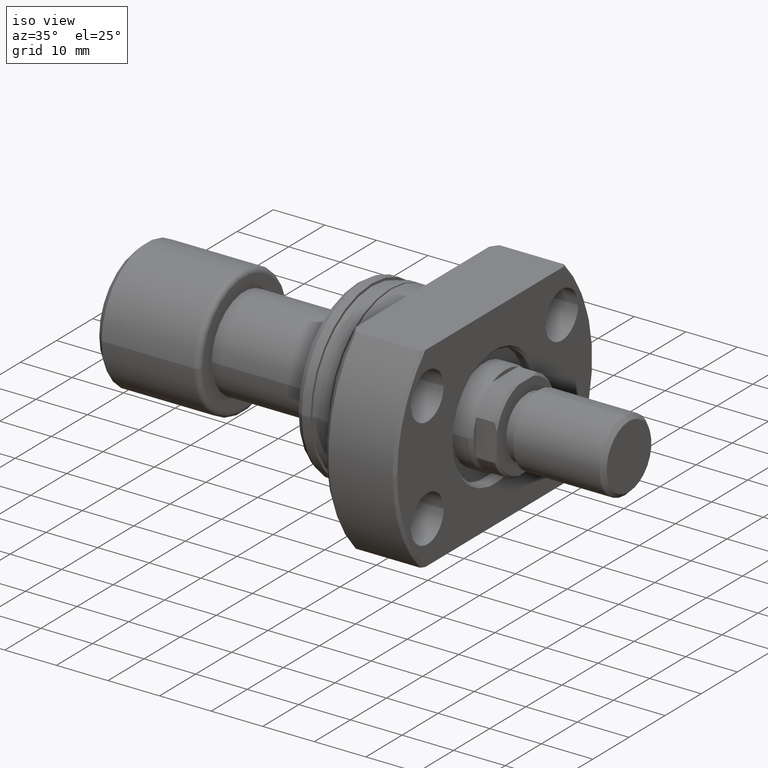
[diagram: clean part render]
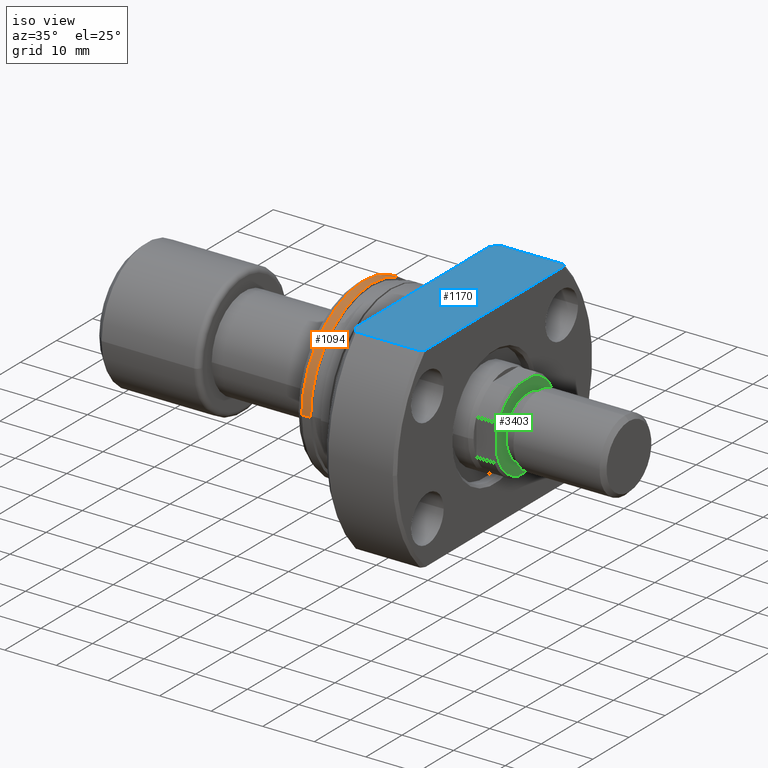
[diagram: same view with three faces highlighted in distinct colors, each labeled with its STEP entity id]
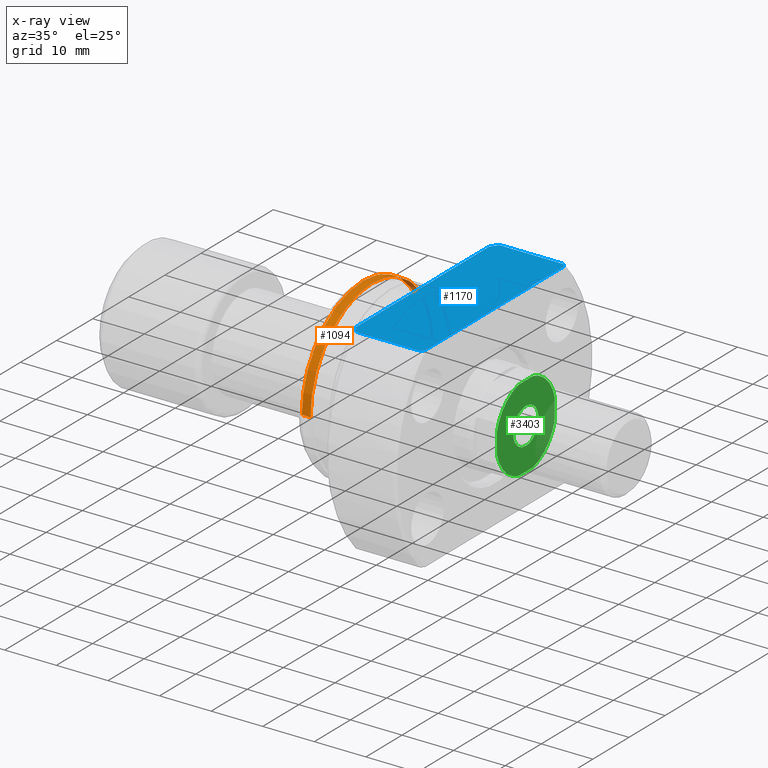
[diagram: x-ray of the same camera — body ghosted, the three highlighted faces saturated]
A machine part, iso view with three faces highlighted in distinct colors.
The next image is the same camera in x-ray (body ghosted, the three faces saturated) — at least one of them is partly hidden behind the body in this view.
Their STEP definitions:

[orange] entity #1094 — the highlighted cylindrical surface (partial cylindrical patch) has radius 17 mm, axis along (1, 0, 0).
#268 = DIRECTION ( 'NONE',  ( 0.000000000000000000, 1.000000000000000000, 0.000000000000000000 ) ) ;
#296 = AXIS2_PLACEMENT_3D ( 'NONE', #1336, #3384, #268 ) ;
#444 = VERTEX_POINT ( 'NONE', #679 ) ;
#465 = CARTESIAN_POINT ( 'NONE',  ( 0.9999999999997857270, 9.242617352053524071E-18, 0.000000000000000000 ) ) ;
#470 = AXIS2_PLACEMENT_3D ( 'NONE', #465, #1239, #3018 ) ;
#505 = EDGE_CURVE ( 'NONE', #3588, #933, #2758, .T. ) ;
#565 = EDGE_CURVE ( 'NONE', #933, #444, #1921, .T. ) ;
#622 = CARTESIAN_POINT ( 'NONE',  ( 0.9999999999997856159, 16.99999999999999645, 0.000000000000000000 ) ) ;
#679 = CARTESIAN_POINT ( 'NONE',  ( 2.699999999999786127, -16.99999999999999645, 2.081899558550499885E-15 ) ) ;
#682 = ORIENTED_EDGE ( 'NONE', *, *, #2345, .T. ) ;
#701 = FACE_OUTER_BOUND ( 'NONE', #2116, .T. ) ;
#778 = AXIS2_PLACEMENT_3D ( 'NONE', #975, #2142, #1238 ) ;
#783 = ORIENTED_EDGE ( 'NONE', *, *, #2605, .T. ) ;
#933 = VERTEX_POINT ( 'NONE', #1528 ) ;
#975 = CARTESIAN_POINT ( 'NONE',  ( 2.699999999999786127, 2.495506685054785763E-17, 0.000000000000000000 ) ) ;
#1058 = ORIENTED_EDGE ( 'NONE', *, *, #505, .F. ) ;
#1094 = ADVANCED_FACE ( 'NONE', ( #701 ), #1862, .T. ) ;
#1215 = DIRECTION ( 'NONE',  ( 1.000000000000000000, 9.242617352055502386E-18, -0.000000000000000000 ) ) ;
#1238 = DIRECTION ( 'NONE',  ( 0.000000000000000000, 1.000000000000000000, 0.000000000000000000 ) ) ;
#1239 = DIRECTION ( 'NONE',  ( 1.000000000000000000, 9.242617352055502386E-18, -0.000000000000000000 ) ) ;
#1336 = CARTESIAN_POINT ( 'NONE',  ( 26.50000000000000711, 2.449293598294708880E-16, 0.000000000000000000 ) ) ;
#1382 = VECTOR ( 'NONE', #1215, 1000.000000000000000 ) ;
#1528 = CARTESIAN_POINT ( 'NONE',  ( 2.699999999999786127, 16.99999999999999645, 0.000000000000000000 ) ) ;
#1862 = CYLINDRICAL_SURFACE ( 'NONE', #296, 16.99999999999999645 ) ;
#1921 = CIRCLE ( 'NONE', #778, 16.99999999999999645 ) ;
#1941 = DIRECTION ( 'NONE',  ( 1.000000000000000000, 9.242617352055502386E-18, -0.000000000000000000 ) ) ;
#2033 = VECTOR ( 'NONE', #1941, 1000.000000000000000 ) ;
#2100 = CARTESIAN_POINT ( 'NONE',  ( 26.50000000000000711, -16.99999999999999645, 2.081899558550499885E-15 ) ) ;
#2116 = EDGE_LOOP ( 'NONE', ( #682, #783, #3481, #1058 ) ) ;
#2142 = DIRECTION ( 'NONE',  ( 1.000000000000000000, 9.242617352055502386E-18, -0.000000000000000000 ) ) ;
#2146 = VERTEX_POINT ( 'NONE', #3165 ) ;
#2214 = CIRCLE ( 'NONE', #470, 16.99999999999999645 ) ;
#2345 = EDGE_CURVE ( 'NONE', #3588, #2146, #2214, .T. ) ;
#2605 = EDGE_CURVE ( 'NONE', #2146, #444, #2948, .T. ) ;
#2758 = LINE ( 'NONE', #3329, #2033 ) ;
#2948 = LINE ( 'NONE', #2100, #1382 ) ;
#3018 = DIRECTION ( 'NONE',  ( -1.275531967630005461E-17, 1.000000000000000000, 0.000000000000000000 ) ) ;
#3165 = CARTESIAN_POINT ( 'NONE',  ( 0.9999999999997859490, -16.99999999999999645, 2.081899558550499885E-15 ) ) ;
#3329 = CARTESIAN_POINT ( 'NONE',  ( 26.50000000000000711, 16.99999999999999645, 0.000000000000000000 ) ) ;
#3384 = DIRECTION ( 'NONE',  ( 1.000000000000000000, 9.242617352055502386E-18, -0.000000000000000000 ) ) ;
#3481 = ORIENTED_EDGE ( 'NONE', *, *, #565, .F. ) ;
#3588 = VERTEX_POINT ( 'NONE', #622 ) ;

[blue] entity #1170 — the highlighted planar face has unit normal (0, 0, 1).
#8 = EDGE_CURVE ( 'NONE', #2405, #3210, #1826, .T. ) ;
#167 = CARTESIAN_POINT ( 'NONE',  ( -2.151057110211240797E-13, 19.88089535207168623, 19.00000000000001066 ) ) ;
#272 = EDGE_CURVE ( 'NONE', #2182, #863, #1581, .T. ) ;
#276 = EDGE_CURVE ( 'NONE', #3497, #2405, #3558, .T. ) ;
#328 = CARTESIAN_POINT ( 'NONE',  ( 26.50000000000000355, -19.18332609325086224, 19.00000000000000711 ) ) ;
#387 = B_SPLINE_CURVE_WITH_KNOTS ( 'NONE', 3,
 ( #3303, #2373, #3503, #757 ),
 .UNSPECIFIED., .F., .F.,
 ( 4, 4 ),
 ( 0.03127512062948595295, 0.03213456893170307110 ),
 .UNSPECIFIED. ) ;
#406 = VECTOR ( 'NONE', #1668, 1000.000000000000000 ) ;
#452 = CARTESIAN_POINT ( 'NONE',  ( -2.151057110211240797E-13, 19.88089535207167913, 19.00000000000000355 ) ) ;
#462 = ORIENTED_EDGE ( 'NONE', *, *, #2014, .T. ) ;
#507 = CARTESIAN_POINT ( 'NONE',  ( 12.82897297353833999, -18.94487470268462914, 19.00000000000001066 ) ) ;
#512 = CARTESIAN_POINT ( 'NONE',  ( 12.50000000000000355, 18.47295320191106072, 19.00000000000001066 ) ) ;
#536 = CARTESIAN_POINT ( 'NONE',  ( 13.49999999999998757, 19.88089535207129188, 19.00000000000000355 ) ) ;
#566 = VERTEX_POINT ( 'NONE', #2677 ) ;
#580 = CARTESIAN_POINT ( 'NONE',  ( 26.50000000000000355, 19.18332609325086935, 19.00000000000000711 ) ) ;
#728 = DIRECTION ( 'NONE',  ( 1.000000000000000000, -2.886466111666351885E-14, -0.000000000000000000 ) ) ;
#757 = CARTESIAN_POINT ( 'NONE',  ( 26.50000000000000355, -19.18332609325086224, 19.00000000000000711 ) ) ;
#793 = LINE ( 'NONE', #2497, #406 ) ;
#863 = VERTEX_POINT ( 'NONE', #3244 ) ;
#910 = ORIENTED_EDGE ( 'NONE', *, *, #276, .T. ) ;
#1060 = ORIENTED_EDGE ( 'NONE', *, *, #272, .T. ) ;
#1115 = DIRECTION ( 'NONE',  ( -0.000000000000000000, 1.000000000000000000, 0.000000000000000000 ) ) ;
#1155 = CARTESIAN_POINT ( 'NONE',  ( 26.50000000000000355, 19.88089535207168623, 19.00000000000001066 ) ) ;
#1170 = ADVANCED_FACE ( 'NONE', ( #2202 ), #2879, .T. ) ;
#1186 = CARTESIAN_POINT ( 'NONE',  ( 13.49999999999998757, 19.88089535207129188, 19.00000000000000355 ) ) ;
#1200 = B_SPLINE_CURVE_WITH_KNOTS ( 'NONE', 3,
 ( #2538, #507, #1681, #2520 ),
 .UNSPECIFIED., .F., .F.,
 ( 4, 4 ),
 ( 0.07360185391654980314, 0.07534192973589427800 ),
 .UNSPECIFIED. ) ;
#1581 = B_SPLINE_CURVE_WITH_KNOTS ( 'NONE', 3,
 ( #3674, #2248, #2565, #3643 ),
 .UNSPECIFIED., .F., .F.,
 ( 4, 4 ),
 ( 0.07446973138748344545, 0.07533421896860403866 ),
 .UNSPECIFIED. ) ;
#1668 = DIRECTION ( 'NONE',  ( 1.000000000000000000, -2.886466111666351885E-14, -0.000000000000000000 ) ) ;
#1669 = LINE ( 'NONE', #1155, #2511 ) ;
#1681 = CARTESIAN_POINT ( 'NONE',  ( 13.16251021117672160, -19.41406682004138773, 19.00000000000001066 ) ) ;
#1725 = CARTESIAN_POINT ( 'NONE',  ( 13.16276636410033873, 19.41442114037127453, 19.00000000000001066 ) ) ;
#1736 = ORIENTED_EDGE ( 'NONE', *, *, #3661, .F. ) ;
#1826 = LINE ( 'NONE', #2937, #2028 ) ;
#1904 = EDGE_CURVE ( 'NONE', #566, #3146, #793, .T. ) ;
#1959 = CARTESIAN_POINT ( 'NONE',  ( 12.50000000000000355, 18.47295320191106072, 19.00000000000001066 ) ) ;
#2014 = EDGE_CURVE ( 'NONE', #3210, #566, #1200, .T. ) ;
#2028 = VECTOR ( 'NONE', #2391, 1000.000000000000000 ) ;
#2182 = VERTEX_POINT ( 'NONE', #580 ) ;
#2202 = FACE_OUTER_BOUND ( 'NONE', #2476, .T. ) ;
#2248 = CARTESIAN_POINT ( 'NONE',  ( 26.33435831467464538, 19.41646217622441029, 19.00000000000001066 ) ) ;
#2252 = EDGE_CURVE ( 'NONE', #3146, #2993, #387, .T. ) ;
#2373 = CARTESIAN_POINT ( 'NONE',  ( 26.16760613831981885, -19.64905625618670726, 19.00000000000001066 ) ) ;
#2391 = DIRECTION ( 'NONE',  ( 9.242617352055502386E-18, -1.000000000000000000, 0.000000000000000000 ) ) ;
#2405 = VERTEX_POINT ( 'NONE', #1959 ) ;
#2476 = EDGE_LOOP ( 'NONE', ( #910, #2730, #462, #2915, #2999, #3176, #1060, #1736 ) ) ;
#2497 = CARTESIAN_POINT ( 'NONE',  ( -1.360023205165816762E-12, -19.88089535207016922, 19.00000000000001421 ) ) ;
#2511 = VECTOR ( 'NONE', #1115, 1000.000000000000000 ) ;
#2520 = CARTESIAN_POINT ( 'NONE',  ( 13.49999999999998757, -19.88089535207056002, 19.00000000000001421 ) ) ;
#2538 = CARTESIAN_POINT ( 'NONE',  ( 12.50000000000000355, -18.47295320191106072, 19.00000000000001066 ) ) ;
#2565 = CARTESIAN_POINT ( 'NONE',  ( 26.16766778152496187, 19.64897098899368899, 19.00000000000001066 ) ) ;
#2619 = AXIS2_PLACEMENT_3D ( 'NONE', #167, #2804, #2854 ) ;
#2677 = CARTESIAN_POINT ( 'NONE',  ( 13.49999999999998757, -19.88089535207056002, 19.00000000000001421 ) ) ;
#2730 = ORIENTED_EDGE ( 'NONE', *, *, #8, .T. ) ;
#2804 = DIRECTION ( 'NONE',  ( 0.000000000000000000, 0.000000000000000000, 1.000000000000000000 ) ) ;
#2854 = DIRECTION ( 'NONE',  ( 1.000000000000000000, 0.000000000000000000, -0.000000000000000000 ) ) ;
#2879 = PLANE ( 'NONE',  #2619 ) ;
#2915 = ORIENTED_EDGE ( 'NONE', *, *, #1904, .T. ) ;
#2937 = CARTESIAN_POINT ( 'NONE',  ( 12.50000000000000355, -16.99999999999999645, 19.00000000000001066 ) ) ;
#2993 = VERTEX_POINT ( 'NONE', #328 ) ;
#2997 = CARTESIAN_POINT ( 'NONE',  ( 12.50000000000000355, -18.47295320191106072, 19.00000000000001066 ) ) ;
#2999 = ORIENTED_EDGE ( 'NONE', *, *, #2252, .T. ) ;
#3146 = VERTEX_POINT ( 'NONE', #3434 ) ;
#3176 = ORIENTED_EDGE ( 'NONE', *, *, #3435, .T. ) ;
#3210 = VERTEX_POINT ( 'NONE', #2997 ) ;
#3244 = CARTESIAN_POINT ( 'NONE',  ( 26.00000000000007461, 19.88089535207092950, 19.00000000000000355 ) ) ;
#3294 = LINE ( 'NONE', #452, #3642 ) ;
#3303 = CARTESIAN_POINT ( 'NONE',  ( 26.00000000000007461, -19.88089535207091885, 19.00000000000001421 ) ) ;
#3401 = CARTESIAN_POINT ( 'NONE',  ( 12.82923531929442262, 18.94525104546319128, 19.00000000000001066 ) ) ;
#3434 = CARTESIAN_POINT ( 'NONE',  ( 26.00000000000007461, -19.88089535207091885, 19.00000000000001421 ) ) ;
#3435 = EDGE_CURVE ( 'NONE', #2993, #2182, #1669, .T. ) ;
#3497 = VERTEX_POINT ( 'NONE', #1186 ) ;
#3503 = CARTESIAN_POINT ( 'NONE',  ( 26.33429591812845061, -19.41654999763447620, 19.00000000000001066 ) ) ;
#3558 = B_SPLINE_CURVE_WITH_KNOTS ( 'NONE', 3,
 ( #536, #1725, #3401, #512 ),
 .UNSPECIFIED., .F., .F.,
 ( 4, 4 ),
 ( 0.03128279945209438972, 0.03301205973984312758 ),
 .UNSPECIFIED. ) ;
#3642 = VECTOR ( 'NONE', #728, 1000.000000000000000 ) ;
#3643 = CARTESIAN_POINT ( 'NONE',  ( 26.00000000000007461, 19.88089535207092950, 19.00000000000000355 ) ) ;
#3661 = EDGE_CURVE ( 'NONE', #3497, #863, #3294, .T. ) ;
#3674 = CARTESIAN_POINT ( 'NONE',  ( 26.50000000000000355, 19.18332609325086935, 19.00000000000000711 ) ) ;

[green] entity #3403 — the highlighted planar face has unit normal (-1, -0, 0).
#3 = VECTOR ( 'NONE', #877, 1000.000000000000000 ) ;
#126 = DIRECTION ( 'NONE',  ( 1.000000000000000000, 1.069542322069065801E-17, 0.000000000000000000 ) ) ;
#139 = VERTEX_POINT ( 'NONE', #2017 ) ;
#142 = ORIENTED_EDGE ( 'NONE', *, *, #1588, .T. ) ;
#273 = FACE_OUTER_BOUND ( 'NONE', #378, .T. ) ;
#378 = EDGE_LOOP ( 'NONE', ( #544, #2055, #1658, #3291, #2369, #3542, #3561, #142 ) ) ;
#390 = DIRECTION ( 'NONE',  ( 1.566181886088703027E-14, 1.000000000000000000, 2.447159197013598480E-16 ) ) ;
#404 = CARTESIAN_POINT ( 'NONE',  ( 75.00000000000000000, -1.242948599619172861E-12, 0.000000000000000000 ) ) ;
#443 = CARTESIAN_POINT ( 'NONE',  ( 74.99999999999985789, -8.000000000001245226, 2.015564437069743420 ) ) ;
#453 = VERTEX_POINT ( 'NONE', #1836 ) ;
#454 = EDGE_CURVE ( 'NONE', #3364, #582, #2260, .T. ) ;
#456 = DIRECTION ( 'NONE',  ( -1.000000000000000000, -1.069542322069065801E-17, -0.000000000000000000 ) ) ;
#481 = DIRECTION ( 'NONE',  ( -1.000000000000000000, -1.069542322069065801E-17, 0.000000000000000000 ) ) ;
#495 = CARTESIAN_POINT ( 'NONE',  ( 75.00000000000000000, -5.004653406798891484E-34, 0.000000000000000000 ) ) ;
#544 = ORIENTED_EDGE ( 'NONE', *, *, #1517, .F. ) ;
#567 = DIRECTION ( 'NONE',  ( 0.000000000000000000, -1.000000000000000000, 0.000000000000000000 ) ) ;
#582 = VERTEX_POINT ( 'NONE', #3270 ) ;
#589 = CARTESIAN_POINT ( 'NONE',  ( 75.00000000000000000, 8.021567415517992473E-16, 0.000000000000000000 ) ) ;
#593 = CIRCLE ( 'NONE', #2691, 3.500000000000215827 ) ;
#643 = DIRECTION ( 'NONE',  ( 0.000000000000000000, -1.000000000000000000, 8.881784197001252323E-16 ) ) ;
#692 = DIRECTION ( 'NONE',  ( 1.000000000000000000, 1.069542322069065801E-17, 0.000000000000000000 ) ) ;
#714 = CIRCLE ( 'NONE', #1977, 3.500000000000215827 ) ;
#861 = CARTESIAN_POINT ( 'NONE',  ( 75.00000000000005684, 3.544361719688217338, -8.000000000000000000 ) ) ;
#866 = CARTESIAN_POINT ( 'NONE',  ( 74.99999999999985789, -8.000000000001243450, -3.544361719689461232 ) ) ;
#877 = DIRECTION ( 'NONE',  ( -1.566181886088703027E-14, -1.000000000000000000, -2.447159197013598480E-16 ) ) ;
#909 = AXIS2_PLACEMENT_3D ( 'NONE', #2172, #126, #2429 ) ;
#937 = DIRECTION ( 'NONE',  ( 0.000000000000000000, 0.000000000000000000, -1.000000000000000000 ) ) ;
#956 = CIRCLE ( 'NONE', #1983, 8.250000000000008882 ) ;
#1107 = VERTEX_POINT ( 'NONE', #3348 ) ;
#1206 = EDGE_CURVE ( 'NONE', #139, #453, #1388, .T. ) ;
#1224 = LINE ( 'NONE', #1482, #3392 ) ;
#1226 = EDGE_CURVE ( 'NONE', #2896, #2781, #2176, .T. ) ;
#1317 = AXIS2_PLACEMENT_3D ( 'NONE', #2029, #692, #643 ) ;
#1327 = DIRECTION ( 'NONE',  ( -1.000000000000000000, -1.069542322069065801E-17, -0.000000000000000000 ) ) ;
#1388 = CIRCLE ( 'NONE', #3034, 8.250000000000008882 ) ;
#1390 = VERTEX_POINT ( 'NONE', #2661 ) ;
#1482 = CARTESIAN_POINT ( 'NONE',  ( 75.00000000000014211, 7.999999999998758327, 3.544361719689459900 ) ) ;
#1517 = EDGE_CURVE ( 'NONE', #3364, #2624, #2285, .T. ) ;
#1524 = CARTESIAN_POINT ( 'NONE',  ( 75.00000000000000000, -1.242948599619172861E-12, 0.000000000000000000 ) ) ;
#1588 = EDGE_CURVE ( 'NONE', #2896, #2624, #956, .T. ) ;
#1658 = ORIENTED_EDGE ( 'NONE', *, *, #2170, .F. ) ;
#1778 = CARTESIAN_POINT ( 'NONE',  ( 74.99999999999997158, -2.015564437074671478, -8.000000000000001776 ) ) ;
#1836 = CARTESIAN_POINT ( 'NONE',  ( 75.00000000000002842, 2.015564437074672366, 8.000000000000001776 ) ) ;
#1892 = CARTESIAN_POINT ( 'NONE',  ( 75.00000000000000000, -3.500000000001580958, 4.286263797016150254E-16 ) ) ;
#1919 = DIRECTION ( 'NONE',  ( 1.069542322069065801E-17, -1.000000000000000000, 0.000000000000000000 ) ) ;
#1977 = AXIS2_PLACEMENT_3D ( 'NONE', #1524, #1327, #3602 ) ;
#1983 = AXIS2_PLACEMENT_3D ( 'NONE', #589, #3196, #567 ) ;
#2017 = CARTESIAN_POINT ( 'NONE',  ( 75.00000000000000000, 7.999999999998758327, 2.015564437079602200 ) ) ;
#2029 = CARTESIAN_POINT ( 'NONE',  ( 75.00000000000000000, 8.021567415517992473E-16, 0.000000000000000000 ) ) ;
#2055 = ORIENTED_EDGE ( 'NONE', *, *, #454, .T. ) ;
#2143 = DIRECTION ( 'NONE',  ( 1.000000000000000000, 1.069542322069065801E-17, 0.000000000000000000 ) ) ;
#2170 = EDGE_CURVE ( 'NONE', #139, #582, #1224, .T. ) ;
#2172 = CARTESIAN_POINT ( 'NONE',  ( 75.00000000000000000, 8.021567415517992473E-16, 0.000000000000000000 ) ) ;
#2176 = LINE ( 'NONE', #866, #2977 ) ;
#2207 = FACE_BOUND ( 'NONE', #2549, .T. ) ;
#2260 = CIRCLE ( 'NONE', #1317, 8.250000000000008882 ) ;
#2280 = VECTOR ( 'NONE', #390, 1000.000000000000000 ) ;
#2285 = LINE ( 'NONE', #861, #3 ) ;
#2293 = CARTESIAN_POINT ( 'NONE',  ( 75.00000000000000000, -8.000000000001243450, -2.015564437069737203 ) ) ;
#2305 = EDGE_CURVE ( 'NONE', #1107, #2378, #714, .T. ) ;
#2328 = ORIENTED_EDGE ( 'NONE', *, *, #2305, .T. ) ;
#2369 = ORIENTED_EDGE ( 'NONE', *, *, #3177, .F. ) ;
#2378 = VERTEX_POINT ( 'NONE', #1892 ) ;
#2429 = DIRECTION ( 'NONE',  ( 0.000000000000000000, -1.000000000000000000, 0.000000000000000000 ) ) ;
#2549 = EDGE_LOOP ( 'NONE', ( #2328, #2728 ) ) ;
#2591 = CARTESIAN_POINT ( 'NONE',  ( 75.00000000000000000, 8.021567415517992473E-16, 0.000000000000000000 ) ) ;
#2624 = VERTEX_POINT ( 'NONE', #1778 ) ;
#2661 = CARTESIAN_POINT ( 'NONE',  ( 74.99999999999997158, -2.015564437074678139, 8.000000000000001776 ) ) ;
#2691 = AXIS2_PLACEMENT_3D ( 'NONE', #404, #456, #3253 ) ;
#2728 = ORIENTED_EDGE ( 'NONE', *, *, #3240, .T. ) ;
#2747 = CIRCLE ( 'NONE', #909, 8.250000000000010658 ) ;
#2781 = VERTEX_POINT ( 'NONE', #443 ) ;
#2816 = CARTESIAN_POINT ( 'NONE',  ( 75.00000000000002842, 2.015564437074676363, -8.000000000000000000 ) ) ;
#2896 = VERTEX_POINT ( 'NONE', #2293 ) ;
#2945 = LINE ( 'NONE', #3560, #2280 ) ;
#2977 = VECTOR ( 'NONE', #3396, 1000.000000000000000 ) ;
#3034 = AXIS2_PLACEMENT_3D ( 'NONE', #2591, #2143, #3502 ) ;
#3060 = PLANE ( 'NONE',  #3340 ) ;
#3177 = EDGE_CURVE ( 'NONE', #1390, #453, #2945, .T. ) ;
#3196 = DIRECTION ( 'NONE',  ( 1.000000000000000000, 1.069542322069065801E-17, 0.000000000000000000 ) ) ;
#3214 = EDGE_CURVE ( 'NONE', #1390, #2781, #2747, .T. ) ;
#3240 = EDGE_CURVE ( 'NONE', #2378, #1107, #593, .T. ) ;
#3253 = DIRECTION ( 'NONE',  ( 0.000000000000000000, -1.000000000000000000, 0.000000000000000000 ) ) ;
#3270 = CARTESIAN_POINT ( 'NONE',  ( 75.00000000000014211, 7.999999999998758327, -2.015564437079602200 ) ) ;
#3291 = ORIENTED_EDGE ( 'NONE', *, *, #1206, .T. ) ;
#3340 = AXIS2_PLACEMENT_3D ( 'NONE', #495, #481, #1919 ) ;
#3348 = CARTESIAN_POINT ( 'NONE',  ( 75.00000000000000000, 3.499999999998967493, 0.000000000000000000 ) ) ;
#3364 = VERTEX_POINT ( 'NONE', #2816 ) ;
#3392 = VECTOR ( 'NONE', #937, 1000.000000000000000 ) ;
#3396 = DIRECTION ( 'NONE',  ( 0.000000000000000000, -2.447159197013598480E-16, 1.000000000000000000 ) ) ;
#3403 = ADVANCED_FACE ( 'NONE', ( #2207, #273 ), #3060, .F. ) ;
#3502 = DIRECTION ( 'NONE',  ( 0.000000000000000000, -1.000000000000000000, 0.000000000000000000 ) ) ;
#3542 = ORIENTED_EDGE ( 'NONE', *, *, #3214, .T. ) ;
#3560 = CARTESIAN_POINT ( 'NONE',  ( 74.99999999999994316, -3.544361719690702017, 8.000000000000000000 ) ) ;
#3561 = ORIENTED_EDGE ( 'NONE', *, *, #1226, .F. ) ;
#3602 = DIRECTION ( 'NONE',  ( 0.000000000000000000, -1.000000000000000000, 0.000000000000000000 ) ) ;